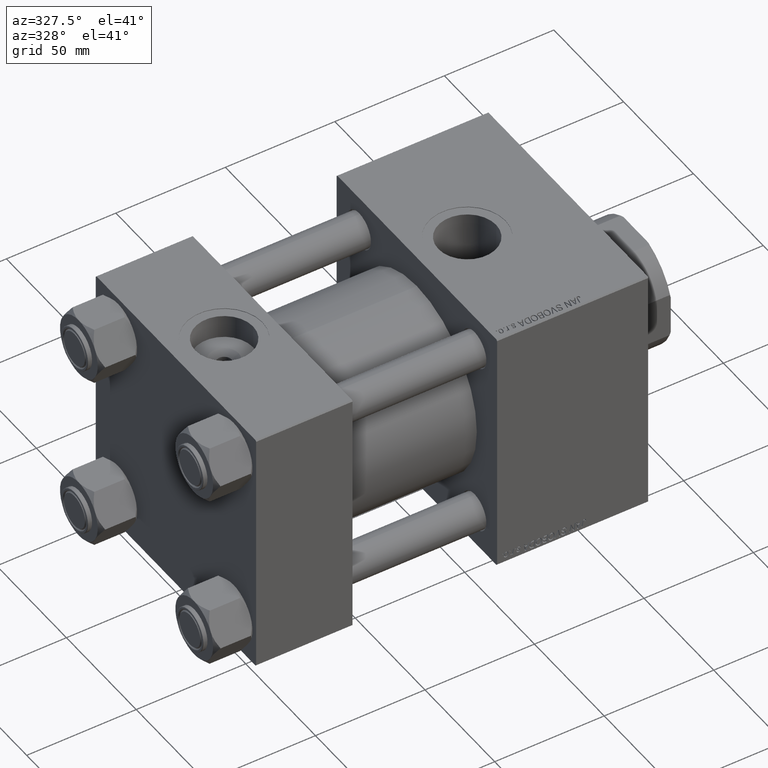
[diagram: clean part render]
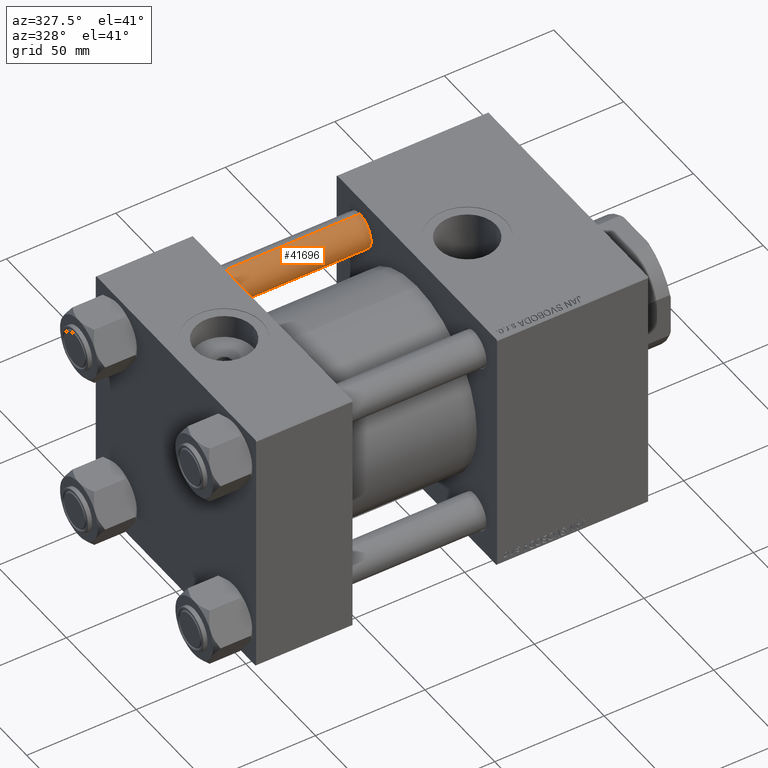
[diagram: same view with one face highlighted and labeled with its STEP entity id]
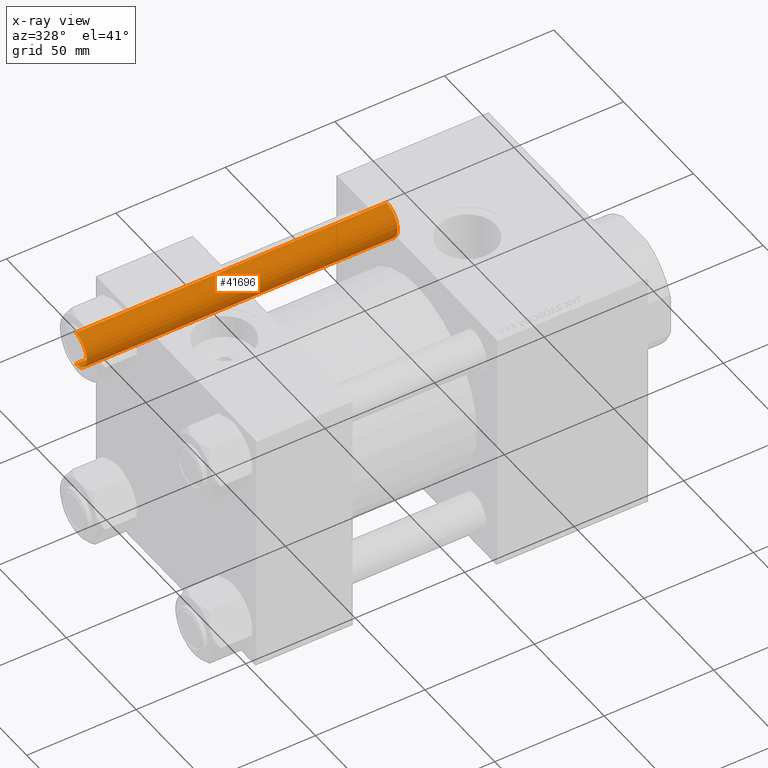
[diagram: x-ray of the same camera — body ghosted, the highlighted face saturated]
A machine part, auxiliary view. The second image highlights one B-rep face of the part: STEP entity #41696.
The next image is the same camera in x-ray: the body ghosted, the highlighted face saturated — about 0% of this face is hidden behind the body in this view.
In plain terms, the highlighted cylindrical surface (edge-blend (fillet) strip) has radius 8 mm, axis along (-1, -0, 0).
Its self-contained STEP definition (entity closure, byte-faithful):
#2091 = DIRECTION ( 'NONE',  ( -0.000000000000000000, -0.000000000000000000, -1.000000000000000000 ) ) ;
#2835 = DIRECTION ( 'NONE',  ( -0.000000000000000000, -0.000000000000000000, -1.000000000000000000 ) ) ;
#3808 = VECTOR ( 'NONE', #2091, 1000.000000000000000 ) ;
#4238 = CARTESIAN_POINT ( 'NONE',  ( 0.000000000000000000, 0.000000000000000000, 143.0000000000000000 ) ) ;
#4575 = ORIENTED_EDGE ( 'NONE', *, *, #48803, .T. ) ;
#6126 = VERTEX_POINT ( 'NONE', #25994 ) ;
#7063 = FACE_OUTER_BOUND ( 'NONE', #33066, .T. ) ;
#7212 = CARTESIAN_POINT ( 'NONE',  ( 8.000000000000000000, 9.797174393178825657E-16, 0.4999999999999726885 ) ) ;
#9881 = DIRECTION ( 'NONE',  ( 0.000000000000000000, 0.000000000000000000, -1.000000000000000000 ) ) ;
#10516 = VERTEX_POINT ( 'NONE', #13712 ) ;
#10627 = CIRCLE ( 'NONE', #13085, 8.000000000000000000 ) ;
#10778 = LINE ( 'NONE', #18459, #3808 ) ;
#11162 = CYLINDRICAL_SURFACE ( 'NONE', #33854, 8.000000000000000000 ) ;
#11343 = DIRECTION ( 'NONE',  ( -0.000000000000000000, -0.000000000000000000, 1.000000000000000000 ) ) ;
#11538 = AXIS2_PLACEMENT_3D ( 'NONE', #34893, #11343, #37978 ) ;
#13085 = AXIS2_PLACEMENT_3D ( 'NONE', #17338, #9881, #13734 ) ;
#13712 = CARTESIAN_POINT ( 'NONE',  ( -8.000000000000000000, 0.000000000000000000, 142.4999999999999716 ) ) ;
#13734 = DIRECTION ( 'NONE',  ( 1.000000000000000000, 0.000000000000000000, 0.000000000000000000 ) ) ;
#14100 = EDGE_CURVE ( 'NONE', #6126, #10516, #10627, .T. ) ;
#14625 = LINE ( 'NONE', #22286, #48001 ) ;
#15555 = ORIENTED_EDGE ( 'NONE', *, *, #16646, .T. ) ;
#16646 = EDGE_CURVE ( 'NONE', #24887, #44285, #22963, .T. ) ;
#17338 = CARTESIAN_POINT ( 'NONE',  ( 0.000000000000000000, 0.000000000000000000, 142.4999999999999716 ) ) ;
#18459 = CARTESIAN_POINT ( 'NONE',  ( 8.000000000000000000, 9.797174393178825657E-16, 143.0000000000000000 ) ) ;
#19679 = ORIENTED_EDGE ( 'NONE', *, *, #48856, .F. ) ;
#22286 = CARTESIAN_POINT ( 'NONE',  ( -8.000000000000000000, 0.000000000000000000, 143.0000000000000000 ) ) ;
#22963 = CIRCLE ( 'NONE', #11538, 8.000000000000000000 ) ;
#24887 = VERTEX_POINT ( 'NONE', #31931 ) ;
#25994 = CARTESIAN_POINT ( 'NONE',  ( 8.000000000000000000, 9.797174393178825657E-16, 142.4999999999999716 ) ) ;
#31931 = CARTESIAN_POINT ( 'NONE',  ( -8.000000000000000000, 0.000000000000000000, 0.4999999999999726885 ) ) ;
#33066 = EDGE_LOOP ( 'NONE', ( #19679, #43022, #4575, #15555 ) ) ;
#33854 = AXIS2_PLACEMENT_3D ( 'NONE', #4238, #38558, #38310 ) ;
#34893 = CARTESIAN_POINT ( 'NONE',  ( 0.000000000000000000, 0.000000000000000000, 0.4999999999999726885 ) ) ;
#37978 = DIRECTION ( 'NONE',  ( 1.000000000000000000, 0.000000000000000000, 0.000000000000000000 ) ) ;
#38310 = DIRECTION ( 'NONE',  ( -1.000000000000000000, 0.000000000000000000, 0.000000000000000000 ) ) ;
#38558 = DIRECTION ( 'NONE',  ( -0.000000000000000000, -0.000000000000000000, -1.000000000000000000 ) ) ;
#41696 = ADVANCED_FACE ( 'NONE', ( #7063 ), #11162, .T. ) ;
#43022 = ORIENTED_EDGE ( 'NONE', *, *, #14100, .T. ) ;
#44285 = VERTEX_POINT ( 'NONE', #7212 ) ;
#48001 = VECTOR ( 'NONE', #2835, 1000.000000000000000 ) ;
#48803 = EDGE_CURVE ( 'NONE', #10516, #24887, #14625, .T. ) ;
#48856 = EDGE_CURVE ( 'NONE', #6126, #44285, #10778, .T. ) ;